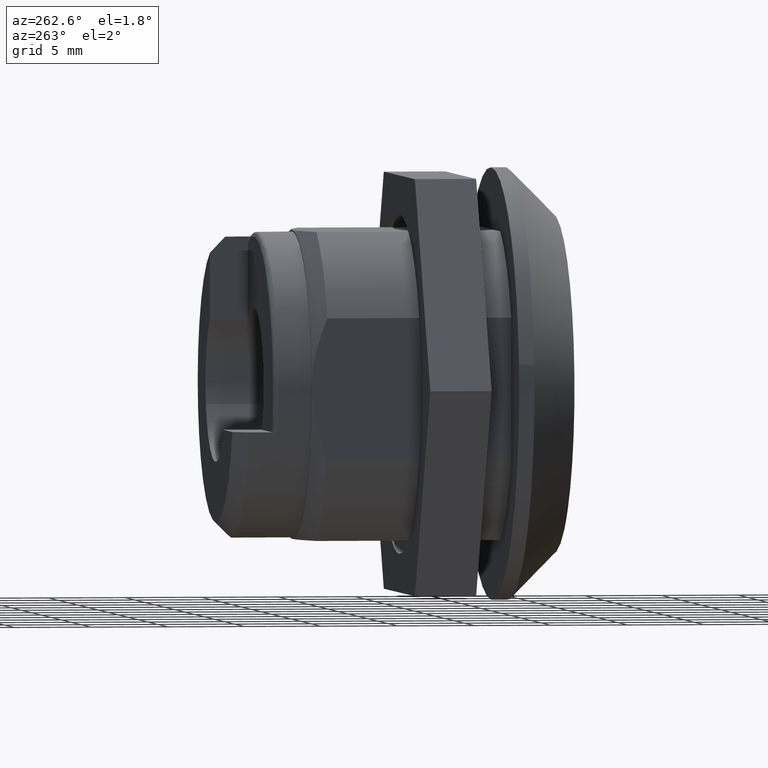
[diagram: clean part render]
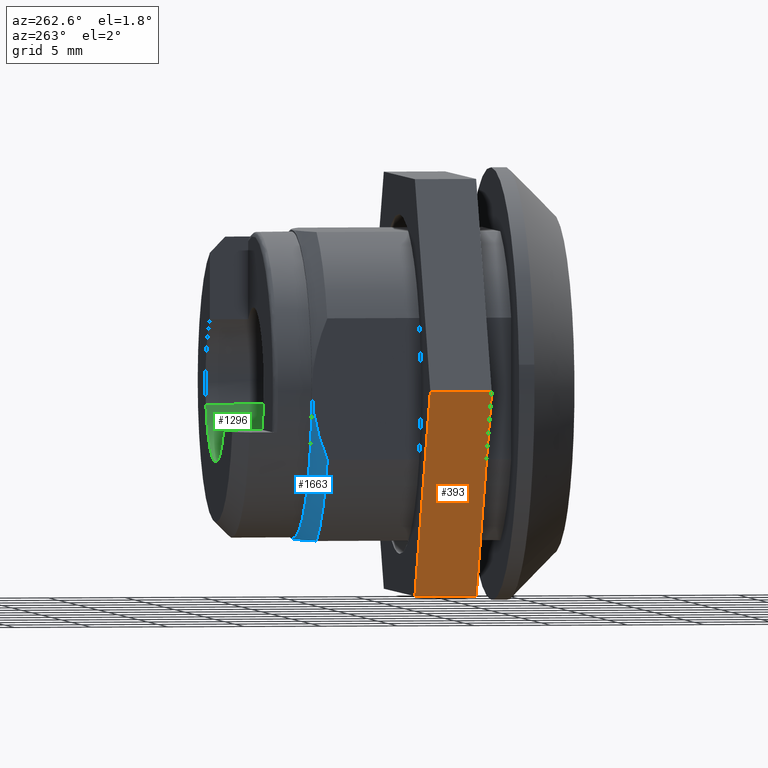
[diagram: same view with three faces highlighted in distinct colors, each labeled with its STEP entity id]
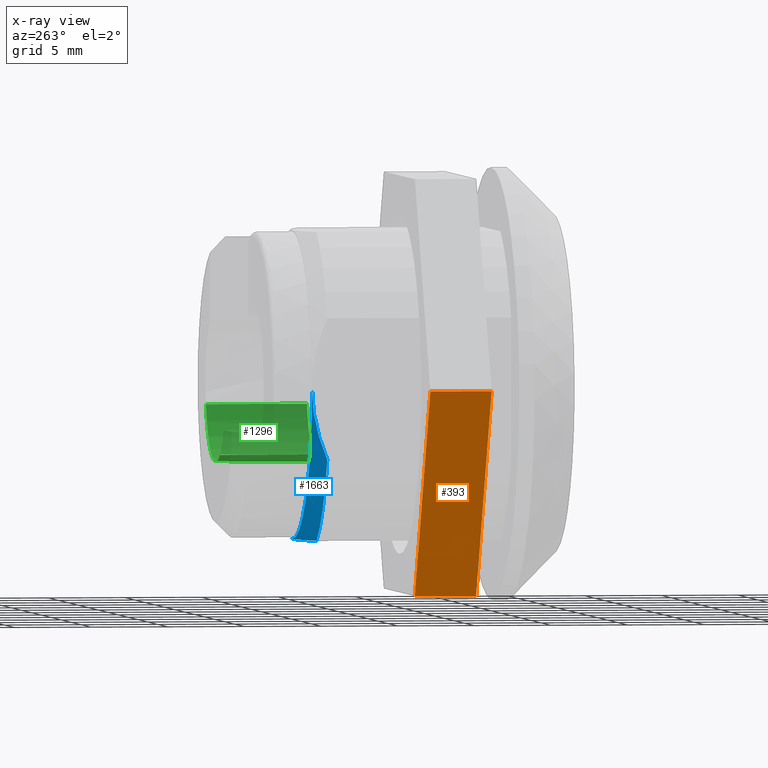
[diagram: x-ray of the same camera — body ghosted, the three highlighted faces saturated]
A machine part, auxiliary view with three faces highlighted in distinct colors.
The next image is the same camera in x-ray (body ghosted, the three faces saturated) — at least one of them is partly hidden behind the body in this view.
Their STEP definitions:

[orange] entity #393 — the highlighted face is a freeform B-spline surface patch.
#251=CARTESIAN_POINT('',(6.000000284984710,7.794229004265790,-13.500000641215459));
#252=VERTEX_POINT('',#251);
#258=CARTESIAN_POINT('',(6.000000284984710,15.588458008532101,1.989520E-013));
#259=VERTEX_POINT('',#258);
#260=CARTESIAN_POINT('',(6.000000284984710,15.588458008532101,1.989520E-013));
#261=CARTESIAN_POINT('',(6.000000284984710,7.794229004265790,-13.500000641215459));
#262=QUASI_UNIFORM_CURVE('',1,(#260,#261),.UNSPECIFIED.,.F.,.U.);
#263=EDGE_CURVE('',#259,#252,#262,.T.);
#307=CARTESIAN_POINT('',(2.000000094994905,15.588458008532101,1.989520E-013));
#308=VERTEX_POINT('',#307);
#314=CARTESIAN_POINT('',(2.000000094994905,7.794229004265790,-13.500000641215459));
#315=VERTEX_POINT('',#314);
#316=CARTESIAN_POINT('',(2.000000094994905,15.588458008532101,1.989520E-013));
#317=CARTESIAN_POINT('',(2.000000094994905,7.794229004265790,-13.500000641215459));
#318=QUASI_UNIFORM_CURVE('',1,(#316,#317),.UNSPECIFIED.,.F.,.U.);
#319=EDGE_CURVE('',#308,#315,#318,.T.);
#370=CARTESIAN_POINT('',(2.000000094994905,7.794229004265790,-13.500000641215459));
#371=CARTESIAN_POINT('',(6.000000284984710,7.794229004265790,-13.500000641215459));
#372=QUASI_UNIFORM_CURVE('',1,(#370,#371),.UNSPECIFIED.,.F.,.U.);
#373=EDGE_CURVE('',#315,#252,#372,.T.);
#378=CARTESIAN_POINT('',(1.800199980610272,15.977779805355119,0.674325132591648));
#379=CARTESIAN_POINT('',(1.800199980610272,7.404907068071106,-14.174326015205740));
#380=CARTESIAN_POINT('',(6.199800399369344,15.977779805355119,0.674325132591648));
#381=CARTESIAN_POINT('',(6.199800399369344,7.404907068071106,-14.174326015205740));
#382=B_SPLINE_SURFACE_WITH_KNOTS('',1,1,((#378,#380),(#379,#381)),.UNSPECIFIED.,.F.,.F.,.U.,(2,2),(2,2),(0.0,17.145745474567509),(0.0,4.399600418759071),.UNSPECIFIED.);
#383=ORIENTED_EDGE('',*,*,#263,.T.);
#384=ORIENTED_EDGE('',*,*,#373,.F.);
#385=ORIENTED_EDGE('',*,*,#319,.F.);
#386=CARTESIAN_POINT('',(2.000000094994905,15.588458008532101,1.989520E-013));
#387=CARTESIAN_POINT('',(6.000000284984710,15.588458008532101,1.989520E-013));
#388=QUASI_UNIFORM_CURVE('',1,(#386,#387),.UNSPECIFIED.,.F.,.U.);
#389=EDGE_CURVE('',#308,#259,#388,.T.);
#390=ORIENTED_EDGE('',*,*,#389,.T.);
#391=EDGE_LOOP('',(#383,#384,#385,#390));
#392=FACE_OUTER_BOUND('',#391,.T.);
#393=ADVANCED_FACE('',(#392),#382,.F.);

[blue] entity #1663 — the highlighted face is a freeform B-spline surface patch.
#1528=CARTESIAN_POINT('',(13.000000617465760,10.000000474974501,0.0));
#1529=VERTEX_POINT('',#1528);
#1589=CARTESIAN_POINT('',(13.025000617465761,-0.087047196155556,-9.974620705017090));
#1590=CARTESIAN_POINT('',(11.974375617465601,-0.096215512513534,-11.025205700436439));
#1591=CARTESIAN_POINT('',(13.025000617465766,10.609423942269103,-10.067967394469779));
#1592=CARTESIAN_POINT('',(11.974375617465597,11.726870102220255,-11.128384205475029));
#1593=CARTESIAN_POINT('',(13.025000617465761,9.956395135755569,0.608959213756344));
#1594=CARTESIAN_POINT('',(11.974375617465601,11.005060508347601,0.673098335605156));
#1602=(BOUNDED_SURFACE()B_SPLINE_SURFACE(1,2,((#1589,#1591,#1593),(#1590,#1592,#1594)),.UNSPECIFIED.,.F.,.F.,.U.)B_SPLINE_SURFACE_WITH_KNOTS((2,2),(3,3),(0.0,1.0),(0.0,19.176313675423600),.UNSPECIFIED.)GEOMETRIC_REPRESENTATION_ITEM()RATIONAL_B_SPLINE_SURFACE(((1.0,0.681998360062499,1.0),(1.0,0.681998360062499,1.0)))REPRESENTATION_ITEM('')SURFACE());
#1603=CARTESIAN_POINT('',(12.000000617465600,4.582575912616710,-10.000000474974399));
#1604=VERTEX_POINT('',#1603);
#1605=CARTESIAN_POINT('',(13.000000617465760,8.500145E-014,-10.000000474974399));
#1606=VERTEX_POINT('',#1605);
#1607=CARTESIAN_POINT('',(12.000000617465600,4.582575912616710,-10.000000474974399));
#1608=CARTESIAN_POINT('',(12.305556186224971,3.849121305407076,-10.000000474974380));
#1609=CARTESIAN_POINT('',(12.555790636038100,3.103594640283374,-10.000000474974399));
#1610=CARTESIAN_POINT('',(12.816436500438060,1.960273782563994,-10.000000474974399));
#1611=CARTESIAN_POINT('',(12.884144898300869,1.574982816829650,-10.000000474974399));
#1612=CARTESIAN_POINT('',(12.975939409246459,0.794881722367887,-10.000000474974399));
#1613=CARTESIAN_POINT('',(13.000000664171599,0.400066169145727,-10.000000474974399));
#1614=CARTESIAN_POINT('',(13.000000617465760,8.500145E-014,-10.000000474974399));
#1615=B_SPLINE_CURVE_WITH_KNOTS('',3,(#1607,#1608,#1609,#1610,#1611,#1612,#1613,#1614),.UNSPECIFIED.,.F.,.U.,(4,2,2,4),(0.0,0.500000000000000,0.750000000000000,1.0),.UNSPECIFIED.);
#1616=EDGE_CURVE('',#1604,#1606,#1615,.T.);
#1617=ORIENTED_EDGE('',*,*,#1616,.F.);
#1618=CARTESIAN_POINT('',(12.000000617465640,10.000000474974479,-4.582575912616570));
#1619=VERTEX_POINT('',#1618);
#1620=CARTESIAN_POINT('',(12.000000617465640,10.000000474974479,-4.582575912616563));
#1621=CARTESIAN_POINT('',(12.000000617465645,8.297574329687587,-8.297574329687464));
#1622=CARTESIAN_POINT('',(12.000000617465600,4.582575912616710,-10.000000474974399));
#1630=(BOUNDED_CURVE()B_SPLINE_CURVE(2,(#1620,#1621,#1622),.UNSPECIFIED.,.F.,.U.)CURVE()GEOMETRIC_REPRESENTATION_ITEM()QUASI_UNIFORM_CURVE()RATIONAL_B_SPLINE_CURVE((1.0,0.937403469188132,1.0))REPRESENTATION_ITEM(''));
#1631=EDGE_CURVE('',#1619,#1604,#1630,.T.);
#1632=ORIENTED_EDGE('',*,*,#1631,.F.);
#1633=CARTESIAN_POINT('',(13.000000617465760,10.000000474974501,0.0));
#1634=CARTESIAN_POINT('',(13.000000617465700,10.000000522472019,-0.396967018372110));
#1635=CARTESIAN_POINT('',(12.976302610150411,10.000000474974501,-0.789816934426980));
#1636=CARTESIAN_POINT('',(12.885204643787810,10.000000474974501,-1.567924338854895));
#1637=CARTESIAN_POINT('',(12.817827896578100,10.000000474974501,-1.953185859867028));
#1638=CARTESIAN_POINT('',(12.644156356844141,10.000000474974501,-2.716947591861486));
#1639=CARTESIAN_POINT('',(12.537881783749800,10.000000474974501,-3.095451315605900));
#1640=CARTESIAN_POINT('',(12.353151121197930,10.000000474974501,-3.658808214837405));
#1641=CARTESIAN_POINT('',(12.287429908929269,10.000000474974501,-3.845606176339955));
#1642=CARTESIAN_POINT('',(12.148933411189221,10.000000474974501,-4.216061590864271));
#1643=CARTESIAN_POINT('',(12.076089840776881,10.000000474974501,-4.399931585029188));
#1644=CARTESIAN_POINT('',(12.000000617465640,10.000000474974501,-4.582575912616570));
#1645=B_SPLINE_CURVE_WITH_KNOTS('',3,(#1633,#1634,#1635,#1636,#1637,#1638,#1639,#1640,#1641,#1642,#1643,#1644),.UNSPECIFIED.,.F.,.U.,(4,2,2,2,2,4),(0.0,0.250000000000000,0.500000000000000,0.750000000000000,0.875000000000000,1.0),.UNSPECIFIED.);
#1646=EDGE_CURVE('',#1529,#1619,#1645,.T.);
#1647=ORIENTED_EDGE('',*,*,#1646,.F.);
#1648=CARTESIAN_POINT('',(13.000000617465760,8.500145E-014,-10.000000474974399));
#1649=CARTESIAN_POINT('',(13.000000617465700,10.000000522472007,-10.000000522471920));
#1650=CARTESIAN_POINT('',(13.000000617465760,10.000000474974501,0.0));
#1658=(BOUNDED_CURVE()B_SPLINE_CURVE(2,(#1648,#1649,#1650),.UNSPECIFIED.,.F.,.U.)CURVE()GEOMETRIC_REPRESENTATION_ITEM()QUASI_UNIFORM_CURVE()RATIONAL_B_SPLINE_CURVE((1.0,0.707106781186548,1.0))REPRESENTATION_ITEM(''));
#1659=EDGE_CURVE('',#1606,#1529,#1658,.T.);
#1660=ORIENTED_EDGE('',*,*,#1659,.F.);
#1661=EDGE_LOOP('',(#1617,#1632,#1647,#1660));
#1662=FACE_OUTER_BOUND('',#1661,.T.);
#1663=ADVANCED_FACE('',(#1662),#1602,.T.);

[green] entity #1296 — the highlighted face is a freeform B-spline surface patch.
#1211=CARTESIAN_POINT('',(18.165000881077599,2.268551049295464,-4.455947681664974));
#1212=CARTESIAN_POINT('',(18.165000881077589,2.249587063265052,-4.465401105871061));
#1213=CARTESIAN_POINT('',(18.165000881077589,1.837140015722615,-4.671003287644192));
#1214=CARTESIAN_POINT('',(18.165000881077589,1.415407364372262,-4.795479576408735));
#1215=CARTESIAN_POINT('',(18.165000881077596,-3.380072212036474,-6.210886940780997));
#1216=CARTESIAN_POINT('',(18.165000881077582,-4.801076393748224,-1.396445033159358));
#1217=CARTESIAN_POINT('',(18.165000881077599,-4.806654907156186,-1.377544716693604));
#1218=CARTESIAN_POINT('',(11.230874783233597,2.268551049295464,-4.455947681664974));
#1219=CARTESIAN_POINT('',(11.230874783233595,2.249587063265052,-4.465401105871061));
#1220=CARTESIAN_POINT('',(11.230874783233595,1.837140015722615,-4.671003287644192));
#1221=CARTESIAN_POINT('',(11.230874783233601,1.415407364372262,-4.795479576408735));
#1222=CARTESIAN_POINT('',(11.230874783233595,-3.380072212036474,-6.210886940780997));
#1223=CARTESIAN_POINT('',(11.230874783233590,-4.801076393748224,-1.396445033159358));
#1224=CARTESIAN_POINT('',(11.230874783233599,-4.806654907156186,-1.377544716693604));
#1232=(BOUNDED_SURFACE()B_SPLINE_SURFACE(2,1,((#1211,#1218),(#1212,#1219),(#1213,#1220),(#1214,#1221),(#1215,#1222),(#1216,#1223),(#1217,#1224)),.UNSPECIFIED.,.F.,.F.,.U.)B_SPLINE_SURFACE_WITH_KNOTS((3,1,2,1,3),(2,2),(0.0,0.046393526086878,1.040506123000116,9.324777763943773,9.371180214827749),(0.0,6.934126097843999),.UNSPECIFIED.)GEOMETRIC_REPRESENTATION_ITEM()RATIONAL_B_SPLINE_SURFACE(((0.935647758860681,0.935647758860681),(0.936894355523640,0.936894355523640),(0.964852813742386,0.964852813742386),(1.0,1.0),(0.707106781186548,0.707106781186548),(1.001640574306264,1.001640574306264),(1.003281148612527,1.003281148612527)))REPRESENTATION_ITEM('')SURFACE());
#1233=CARTESIAN_POINT('',(18.000000854953999,-4.795482106365314,-1.415398792680977));
#1234=VERTEX_POINT('',#1233);
#1235=CARTESIAN_POINT('',(18.000000854953999,2.230674734462964,-4.474828779282975));
#1236=VERTEX_POINT('',#1235);
#1237=CARTESIAN_POINT('',(18.000000854953999,-4.795482106365314,-1.415398792680977));
#1238=CARTESIAN_POINT('',(18.000000854953992,-3.941592126455975,-4.308445007411473));
#1239=CARTESIAN_POINT('',(18.000000854953999,-0.984174483688616,-4.902183489071865));
#1240=CARTESIAN_POINT('',(18.000000854953996,0.696508052076414,-5.239601472419158));
#1241=CARTESIAN_POINT('',(18.000000854954003,2.230674734462964,-4.474828779282975));
#1249=(BOUNDED_CURVE()B_SPLINE_CURVE(2,(#1237,#1238,#1239,#1240,#1241),.UNSPECIFIED.,.F.,.U.)B_SPLINE_CURVE_WITH_KNOTS((3,2,3),(0.359729076489313,0.666666666666667,0.853543811854453),.UNSPECIFIED.)CURVE()GEOMETRIC_REPRESENTATION_ITEM()RATIONAL_B_SPLINE_CURVE((0.975566618637617,0.845723978938577,1.0,0.906069952623820,0.917460179853724))REPRESENTATION_ITEM(''));
#1250=EDGE_CURVE('',#1234,#1236,#1249,.T.);
#1251=ORIENTED_EDGE('',*,*,#1250,.T.);
#1252=CARTESIAN_POINT('',(11.399999810010280,2.230671895467461,-4.474830194503590));
#1253=VERTEX_POINT('',#1252);
#1254=CARTESIAN_POINT('',(18.000000854953999,2.230674734462964,-4.474828779282975));
#1255=CARTESIAN_POINT('',(11.399999810010280,2.230671895467461,-4.474830194503590));
#1256=QUASI_UNIFORM_CURVE('',1,(#1254,#1255),.UNSPECIFIED.,.F.,.U.);
#1257=EDGE_CURVE('',#1236,#1253,#1256,.T.);
#1258=ORIENTED_EDGE('',*,*,#1257,.T.);
#1259=CARTESIAN_POINT('',(11.399999810010280,0.0,-5.000000237487250));
#1260=VERTEX_POINT('',#1259);
#1261=CARTESIAN_POINT('',(11.399999810010279,2.230671895467461,-4.474830194503591));
#1262=CARTESIAN_POINT('',(11.399999810010277,1.177156687621087,-5.000000237487251));
#1263=CARTESIAN_POINT('',(11.399999810010280,0.0,-5.000000237487250));
#1271=(BOUNDED_CURVE()B_SPLINE_CURVE(2,(#1261,#1262,#1263),.UNSPECIFIED.,.F.,.U.)B_SPLINE_CURVE_WITH_KNOTS((3,3),(0.924158438096057,1.0),.UNSPECIFIED.)CURVE()GEOMETRIC_REPRESENTATION_ITEM()RATIONAL_B_SPLINE_CURVE((0.876202725129820,0.911146083256457,1.0))REPRESENTATION_ITEM(''));
#1272=EDGE_CURVE('',#1253,#1260,#1271,.T.);
#1273=ORIENTED_EDGE('',*,*,#1272,.T.);
#1274=CARTESIAN_POINT('',(11.399999810010289,-4.795482101447624,-1.415398809342603));
#1275=VERTEX_POINT('',#1274);
#1276=CARTESIAN_POINT('',(11.399999810010280,0.0,-5.000000237487250));
#1277=CARTESIAN_POINT('',(11.399999810010279,-3.737477820336378,-5.000000237487249));
#1278=CARTESIAN_POINT('',(11.399999810010295,-4.795482101447624,-1.415398809342604));
#1286=(BOUNDED_CURVE()B_SPLINE_CURVE(2,(#1276,#1277,#1278),.UNSPECIFIED.,.F.,.U.)B_SPLINE_CURVE_WITH_KNOTS((3,3),(0.0,0.201798244084958),.UNSPECIFIED.)CURVE()GEOMETRIC_REPRESENTATION_ITEM()RATIONAL_B_SPLINE_CURVE((1.0,0.763578650956215,0.908832606722293))REPRESENTATION_ITEM(''));
#1287=EDGE_CURVE('',#1260,#1275,#1286,.T.);
#1288=ORIENTED_EDGE('',*,*,#1287,.T.);
#1289=CARTESIAN_POINT('',(18.000000854953999,-4.795482106365314,-1.415398792680977));
#1290=CARTESIAN_POINT('',(11.399999810010289,-4.795482101447624,-1.415398809342603));
#1291=QUASI_UNIFORM_CURVE('',1,(#1289,#1290),.UNSPECIFIED.,.F.,.U.);
#1292=EDGE_CURVE('',#1234,#1275,#1291,.T.);
#1293=ORIENTED_EDGE('',*,*,#1292,.F.);
#1294=EDGE_LOOP('',(#1251,#1258,#1273,#1288,#1293));
#1295=FACE_OUTER_BOUND('',#1294,.T.);
#1296=ADVANCED_FACE('',(#1295),#1232,.F.);